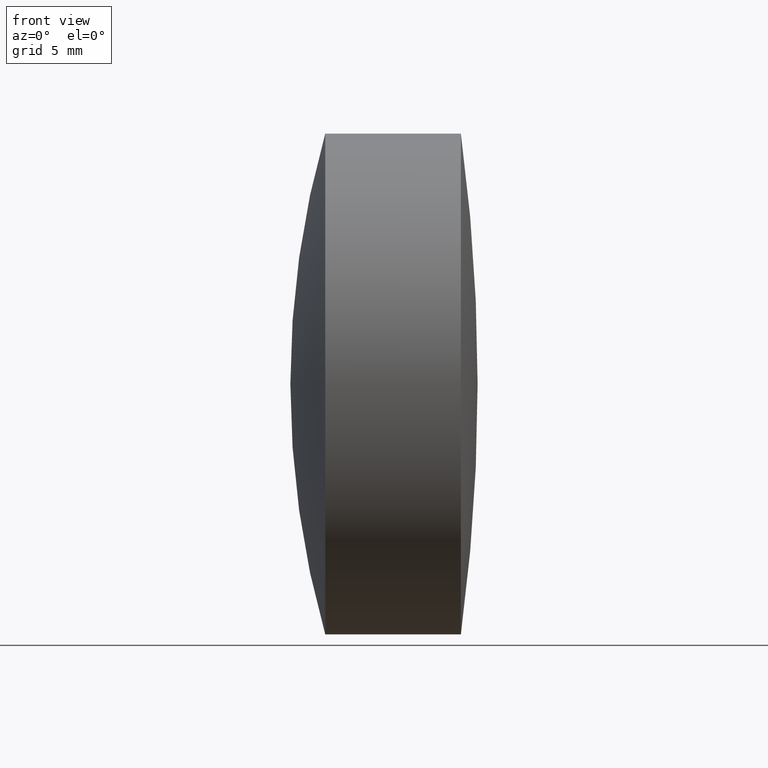
[diagram: clean part render]
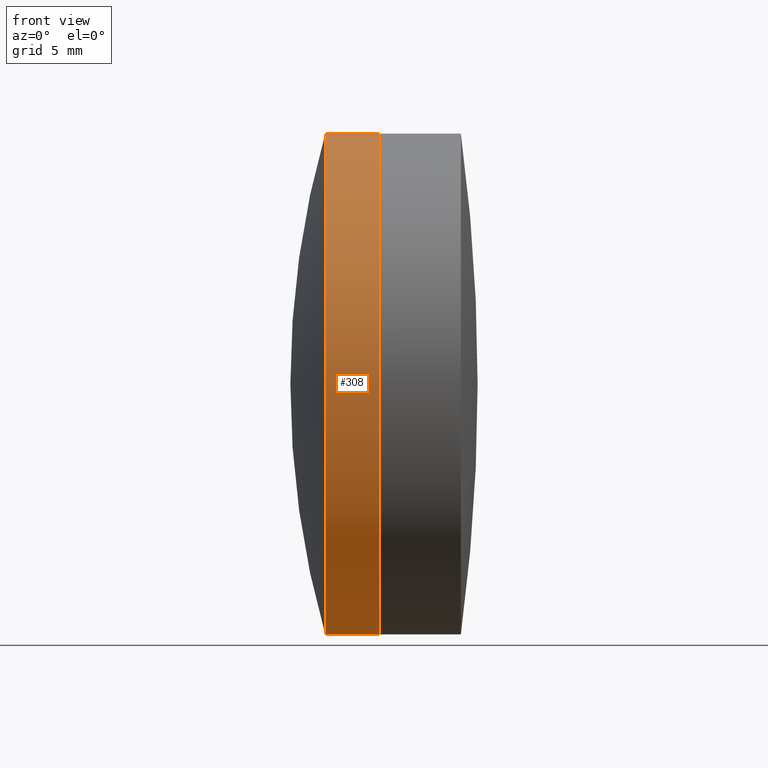
[diagram: same view with one face highlighted and labeled with its STEP entity id]
A machine part, front view. The second image highlights one B-rep face of the part: STEP entity #308.
In plain terms, the highlighted cylindrical surface (partial cylindrical patch) has radius 12.7 mm, axis along (-1, -0, -0).
Its self-contained STEP definition (entity closure, byte-faithful):
#6 = DIRECTION ( 'NONE',  ( -1.000000000000000000, -0.0000000000000000000, -0.0000000000000000000 ) ) ;
#33 = CIRCLE ( 'NONE', #141, 12.69999999999999600 ) ;
#38 = EDGE_CURVE ( 'NONE', #307, #224, #72, .T. ) ;
#47 = LINE ( 'NONE', #77, #110 ) ;
#71 = ORIENTED_EDGE ( 'NONE', *, *, #82, .T. ) ;
#72 = CIRCLE ( 'NONE', #229, 12.69999999999999600 ) ;
#77 = CARTESIAN_POINT ( 'NONE',  ( 161.8331716928335000, 1.555301434917138000E-015, -12.69999999999999600 ) ) ;
#82 = EDGE_CURVE ( 'NONE', #259, #224, #179, .T. ) ;
#108 = CARTESIAN_POINT ( 'NONE',  ( 242.5270405041353300, 1.555301434917138000E-015, -12.69999999999999600 ) ) ;
#110 = VECTOR ( 'NONE', #128, 1000.000000000000000 ) ;
#120 = DIRECTION ( 'NONE',  ( -1.000000000000000000, -0.0000000000000000000, -0.0000000000000000000 ) ) ;
#122 = CARTESIAN_POINT ( 'NONE',  ( 239.7637544197977200, 0.0000000000000000000, 12.69999999999999900 ) ) ;
#128 = DIRECTION ( 'NONE',  ( -1.000000000000000000, -0.0000000000000000000, -0.0000000000000000000 ) ) ;
#139 = CARTESIAN_POINT ( 'NONE',  ( 161.8331716928335000, 0.0000000000000000000, 0.0000000000000000000 ) ) ;
#140 = CYLINDRICAL_SURFACE ( 'NONE', #213, 12.69999999999999600 ) ;
#141 = AXIS2_PLACEMENT_3D ( 'NONE', #303, #204, #304 ) ;
#159 = CARTESIAN_POINT ( 'NONE',  ( 239.7637544197977200, 1.555301434917138400E-015, -12.70000000000000300 ) ) ;
#160 = VERTEX_POINT ( 'NONE', #108 ) ;
#161 = CARTESIAN_POINT ( 'NONE',  ( 161.8331716928335000, 0.0000000000000000000, 12.69999999999999600 ) ) ;
#164 = VECTOR ( 'NONE', #6, 1000.000000000000000 ) ;
#179 = LINE ( 'NONE', #161, #164 ) ;
#185 = CARTESIAN_POINT ( 'NONE',  ( 239.7637544197977200, 0.0000000000000000000, 0.0000000000000000000 ) ) ;
#197 = EDGE_LOOP ( 'NONE', ( #215, #201, #71, #321 ) ) ;
#201 = ORIENTED_EDGE ( 'NONE', *, *, #339, .T. ) ;
#204 = DIRECTION ( 'NONE',  ( -1.000000000000000000, -0.0000000000000000000, -0.0000000000000000000 ) ) ;
#210 = DIRECTION ( 'NONE',  ( -1.000000000000000000, -0.0000000000000000000, -0.0000000000000000000 ) ) ;
#211 = CARTESIAN_POINT ( 'NONE',  ( 242.5270405041353300, 0.0000000000000000000, 12.69999999999999600 ) ) ;
#213 = AXIS2_PLACEMENT_3D ( 'NONE', #139, #210, #319 ) ;
#215 = ORIENTED_EDGE ( 'NONE', *, *, #235, .F. ) ;
#218 = DIRECTION ( 'NONE',  ( 0.0000000000000000000, 0.0000000000000000000, 1.000000000000000000 ) ) ;
#224 = VERTEX_POINT ( 'NONE', #122 ) ;
#229 = AXIS2_PLACEMENT_3D ( 'NONE', #185, #120, #218 ) ;
#235 = EDGE_CURVE ( 'NONE', #160, #307, #47, .T. ) ;
#236 = FACE_OUTER_BOUND ( 'NONE', #197, .T. ) ;
#259 = VERTEX_POINT ( 'NONE', #211 ) ;
#303 = CARTESIAN_POINT ( 'NONE',  ( 242.5270405041353300, 0.0000000000000000000, 0.0000000000000000000 ) ) ;
#304 = DIRECTION ( 'NONE',  ( 0.0000000000000000000, 0.0000000000000000000, 1.000000000000000000 ) ) ;
#307 = VERTEX_POINT ( 'NONE', #159 ) ;
#308 = ADVANCED_FACE ( 'NONE', ( #236 ), #140, .T. ) ;
#319 = DIRECTION ( 'NONE',  ( 0.0000000000000000000, 0.0000000000000000000, 1.000000000000000000 ) ) ;
#321 = ORIENTED_EDGE ( 'NONE', *, *, #38, .F. ) ;
#339 = EDGE_CURVE ( 'NONE', #160, #259, #33, .T. ) ;